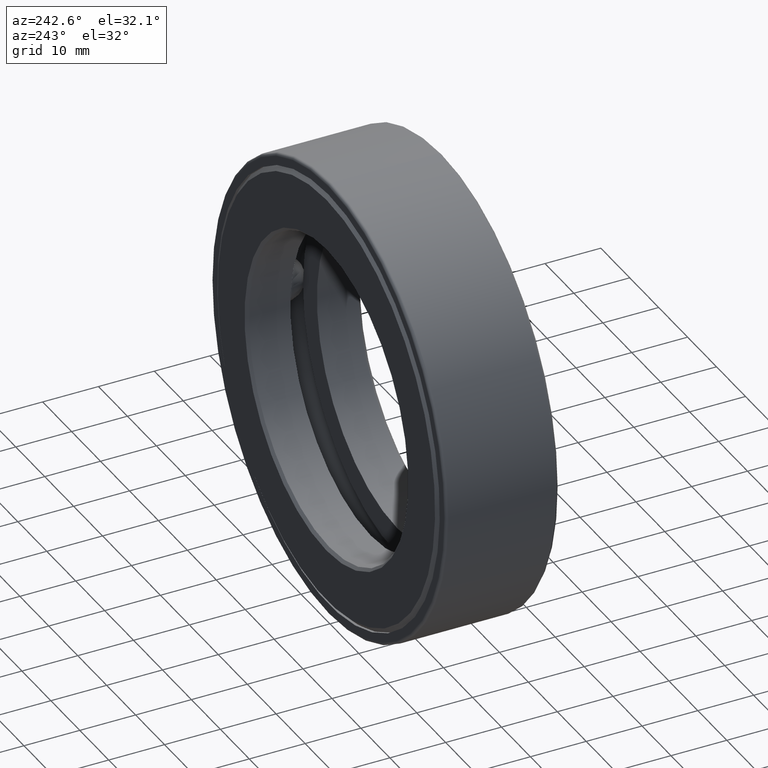
[diagram: clean part render]
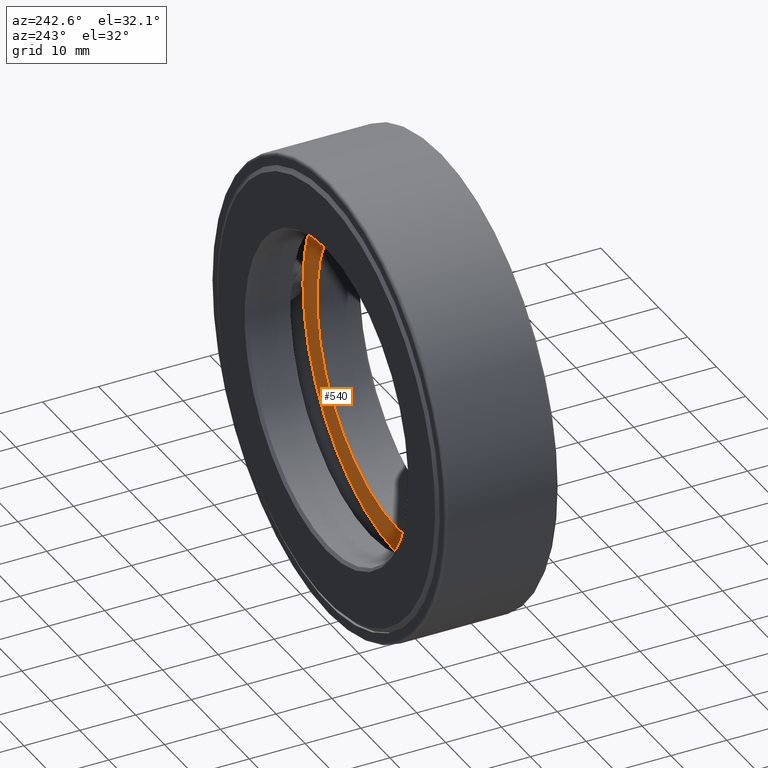
[diagram: same view with one face highlighted and labeled with its STEP entity id]
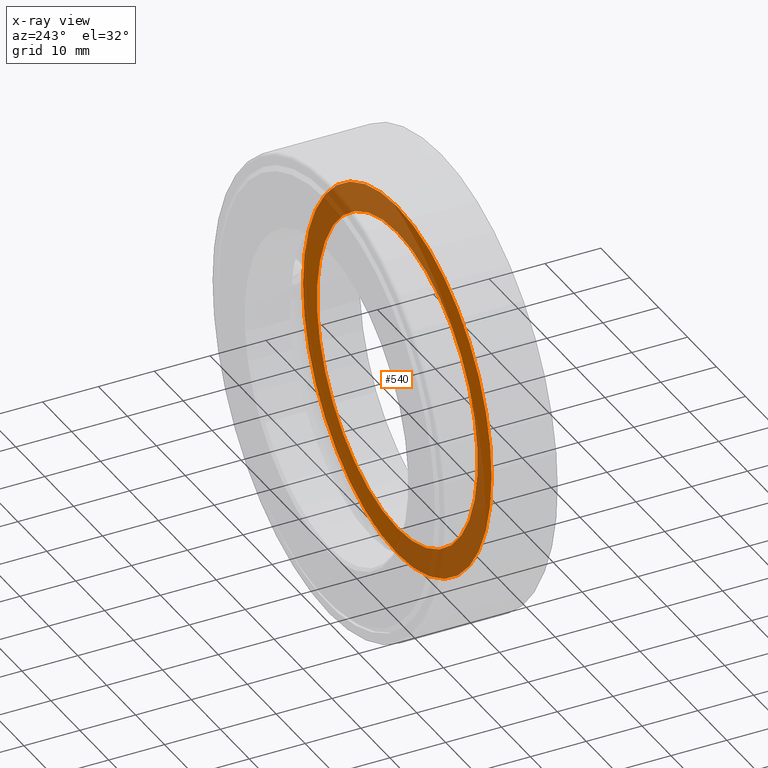
[diagram: x-ray of the same camera — body ghosted, the highlighted face saturated]
A machine part, auxiliary view. The second image highlights one B-rep face of the part: STEP entity #540.
The next image is the same camera in x-ray: the body ghosted, the highlighted face saturated — about 48% of this face is hidden behind the body in this view.
In plain terms, the highlighted planar face has unit normal (0, -1, 0).
Its self-contained STEP definition (entity closure, byte-faithful):
#46 = AXIS2_PLACEMENT_3D ( 'NONE', #439, #304, #444 ) ;
#51 = VERTEX_POINT ( 'NONE', #561 ) ;
#75 = EDGE_LOOP ( 'NONE', ( #195 ) ) ;
#86 = PLANE ( 'NONE',  #597 ) ;
#158 = AXIS2_PLACEMENT_3D ( 'NONE', #292, #384, #435 ) ;
#195 = ORIENTED_EDGE ( 'NONE', *, *, #268, .F. ) ;
#228 = DIRECTION ( 'NONE',  ( 0.0000000000000000000, -0.0000000000000000000, -1.000000000000000000 ) ) ;
#236 = CARTESIAN_POINT ( 'NONE',  ( 0.0000000000000000000, 0.3125000000000000000, 1.283499999999999900 ) ) ;
#268 = EDGE_CURVE ( 'NONE', #51, #51, #563, .T. ) ;
#292 = CARTESIAN_POINT ( 'NONE',  ( 0.0000000000000000000, 0.3125000000000000000, 0.0000000000000000000 ) ) ;
#304 = DIRECTION ( 'NONE',  ( -0.0000000000000000000, 1.000000000000000000, -0.0000000000000000000 ) ) ;
#307 = EDGE_LOOP ( 'NONE', ( #410 ) ) ;
#370 = FACE_BOUND ( 'NONE', #75, .T. ) ;
#384 = DIRECTION ( 'NONE',  ( -0.0000000000000000000, 1.000000000000000000, -0.0000000000000000000 ) ) ;
#395 = EDGE_CURVE ( 'NONE', #466, #466, #508, .T. ) ;
#410 = ORIENTED_EDGE ( 'NONE', *, *, #395, .T. ) ;
#435 = DIRECTION ( 'NONE',  ( 0.0000000000000000000, 0.0000000000000000000, 1.000000000000000000 ) ) ;
#439 = CARTESIAN_POINT ( 'NONE',  ( 0.0000000000000000000, 0.3125000000000000000, 0.0000000000000000000 ) ) ;
#444 = DIRECTION ( 'NONE',  ( 0.0000000000000000000, 0.0000000000000000000, 1.000000000000000000 ) ) ;
#466 = VERTEX_POINT ( 'NONE', #236 ) ;
#508 = CIRCLE ( 'NONE', #46, 1.283499999999999900 ) ;
#511 = DIRECTION ( 'NONE',  ( 0.0000000000000000000, -1.000000000000000000, 0.0000000000000000000 ) ) ;
#512 = CARTESIAN_POINT ( 'NONE',  ( 0.0000000000000000000, 0.3125000000000000000, 0.0000000000000000000 ) ) ;
#540 = ADVANCED_FACE ( 'NONE', ( #370, #581 ), #86, .F. ) ;
#561 = CARTESIAN_POINT ( 'NONE',  ( 0.0000000000000000000, 0.3125000000000000000, 1.093750000000000200 ) ) ;
#563 = CIRCLE ( 'NONE', #158, 1.093750000000000200 ) ;
#581 = FACE_OUTER_BOUND ( 'NONE', #307, .T. ) ;
#597 = AXIS2_PLACEMENT_3D ( 'NONE', #512, #511, #228 ) ;